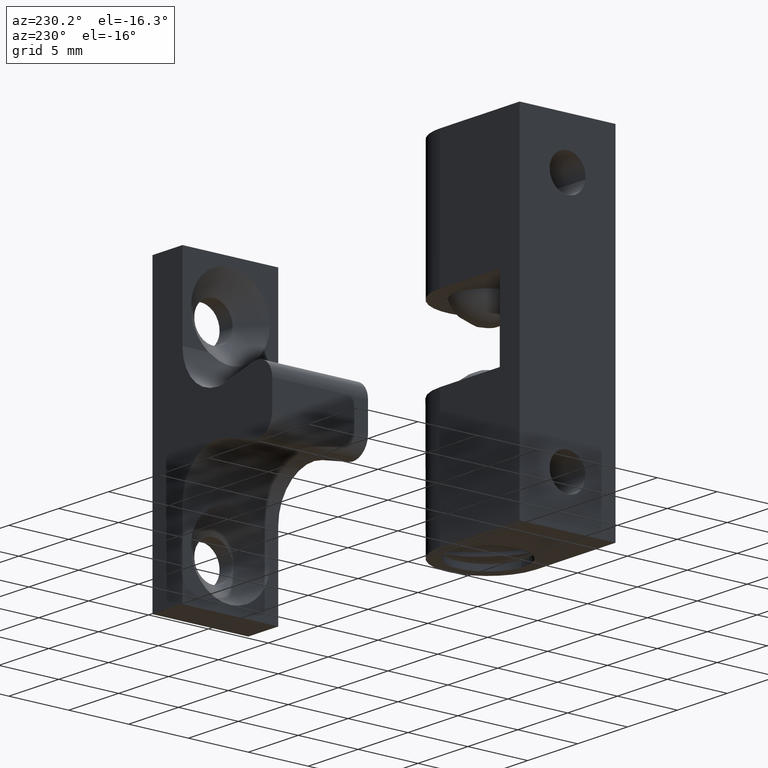
[diagram: clean part render]
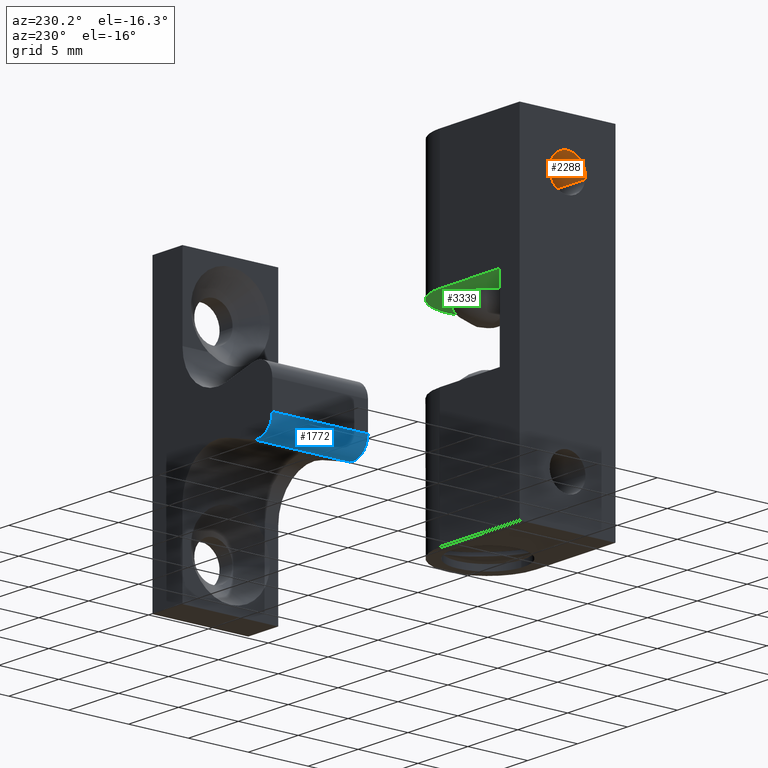
[diagram: same view with three faces highlighted in distinct colors, each labeled with its STEP entity id]
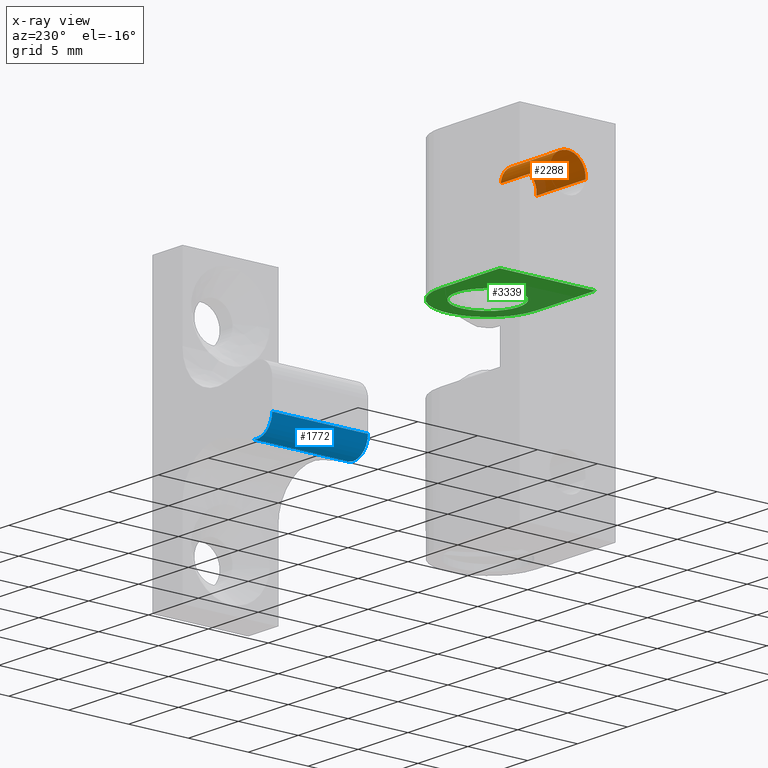
[diagram: x-ray of the same camera — body ghosted, the three highlighted faces saturated]
A machine part, auxiliary view with three faces highlighted in distinct colors.
The next image is the same camera in x-ray (body ghosted, the three faces saturated) — at least one of them is partly hidden behind the body in this view.
Their STEP definitions:

[orange] entity #2288 — the highlighted face is a freeform B-spline surface patch.
#2186=CARTESIAN_POINT('',(5.022500000000003,-1.489514289545500,9.822948648014863));
#2187=CARTESIAN_POINT('',(5.022500000000002,-1.494581423172908,9.865577907043035));
#2188=CARTESIAN_POINT('',(5.022500000000001,-1.497202197632800,9.908427190697715));
#2189=CARTESIAN_POINT('',(5.022500000000002,-1.588775006935085,11.405629388330516));
#2190=CARTESIAN_POINT('',(5.022500000000001,-0.091572809302285,11.497202197632800));
#2191=CARTESIAN_POINT('',(5.022500000000002,1.405629388330515,11.588775006935085));
#2192=CARTESIAN_POINT('',(5.022500000000001,1.497202197632800,10.091572809302290));
#2193=CARTESIAN_POINT('',(-0.125562500000000,-1.489514289545500,9.822948648014863));
#2194=CARTESIAN_POINT('',(-0.125562500000000,-1.494581423172908,9.865577907043035));
#2195=CARTESIAN_POINT('',(-0.125562500000000,-1.497202197632800,9.908427190697715));
#2196=CARTESIAN_POINT('',(-0.125562500000000,-1.588775006935085,11.405629388330516));
#2197=CARTESIAN_POINT('',(-0.125562500000000,-0.091572809302285,11.497202197632800));
#2198=CARTESIAN_POINT('',(-0.125562500000000,1.405629388330515,11.588775006935085));
#2199=CARTESIAN_POINT('',(-0.125562500000000,1.497202197632800,10.091572809302290));
#2207=(BOUNDED_SURFACE()B_SPLINE_SURFACE(2,1,((#2186,#2193),(#2187,#2194),(#2188,#2195),(#2189,#2196),(#2190,#2197),(#2191,#2198),(#2192,#2199)),.UNSPECIFIED.,.F.,.F.,.U.)B_SPLINE_SURFACE_WITH_KNOTS((3,2,2,3),(2,2),(3.078760800517997,3.141592653589793,4.712388980384690,6.283185307179586),(0.0,5.148062500000003),.UNSPECIFIED.)GEOMETRIC_REPRESENTATION_ITEM()RATIONAL_B_SPLINE_SURFACE(((0.977505800795127,0.977505800795127),(0.988284271247462,0.988284271247462),(1.0,1.0),(0.707106781186548,0.707106781186548),(1.0,1.0),(0.707106781186548,0.707106781186548),(1.0,1.0)))REPRESENTATION_ITEM('')SURFACE());
#2208=CARTESIAN_POINT('',(4.900000000000000,-1.489514289535153,9.822948647927817));
#2209=VERTEX_POINT('',#2208);
#2210=CARTESIAN_POINT('',(4.900000000000000,0.0,11.500000000000000));
#2211=VERTEX_POINT('',#2210);
#2212=CARTESIAN_POINT('',(4.900000000000001,-1.489514289535153,9.822948647927817));
#2213=CARTESIAN_POINT('',(4.900000000000000,-1.500000000000001,9.911163820434169));
#2214=CARTESIAN_POINT('',(4.900000000000000,-1.500000000000000,10.0));
#2215=CARTESIAN_POINT('',(4.900000000000000,-1.500000000000000,11.500000000000000));
#2216=CARTESIAN_POINT('',(4.900000000000000,0.0,11.500000000000000));
#2224=(BOUNDED_CURVE()B_SPLINE_CURVE(2,(#2212,#2213,#2214,#2215,#2216),.UNSPECIFIED.,.F.,.U.)B_SPLINE_CURVE_WITH_KNOTS((3,2,3),(0.229562473495891,0.250000000000000,0.500000000000000),.UNSPECIFIED.)CURVE()GEOMETRIC_REPRESENTATION_ITEM()RATIONAL_B_SPLINE_CURVE((0.956026754149169,0.976055948310506,1.0,0.707106781186548,1.0))REPRESENTATION_ITEM(''));
#2225=EDGE_CURVE('',#2209,#2211,#2224,.T.);
#2226=ORIENTED_EDGE('',*,*,#2225,.F.);
#2227=CARTESIAN_POINT('',(5.678856E-017,-1.489514289535153,9.822948647927817));
#2228=VERTEX_POINT('',#2227);
#2229=CARTESIAN_POINT('',(4.900000000000000,-1.489514289535153,9.822948647927817));
#2230=CARTESIAN_POINT('',(5.678856E-017,-1.489514289535153,9.822948647927817));
#2231=QUASI_UNIFORM_CURVE('',1,(#2229,#2230),.UNSPECIFIED.,.F.,.U.);
#2232=EDGE_CURVE('',#2209,#2228,#2231,.T.);
#2233=ORIENTED_EDGE('',*,*,#2232,.T.);
#2234=CARTESIAN_POINT('',(0.0,0.0,11.500000000000000));
#2235=VERTEX_POINT('',#2234);
#2236=CARTESIAN_POINT('',(5.678856E-017,-1.489514289535153,9.822948647927817));
#2237=CARTESIAN_POINT('',(0.0,-1.500000000000001,9.911163820434169));
#2238=CARTESIAN_POINT('',(0.0,-1.500000000000000,10.0));
#2239=CARTESIAN_POINT('',(0.0,-1.500000000000000,11.500000000000000));
#2240=CARTESIAN_POINT('',(0.0,0.0,11.500000000000000));
#2248=(BOUNDED_CURVE()B_SPLINE_CURVE(2,(#2236,#2237,#2238,#2239,#2240),.UNSPECIFIED.,.F.,.U.)B_SPLINE_CURVE_WITH_KNOTS((3,2,3),(0.229562473495891,0.250000000000000,0.500000000000000),.UNSPECIFIED.)CURVE()GEOMETRIC_REPRESENTATION_ITEM()RATIONAL_B_SPLINE_CURVE((0.956026754149169,0.976055948310506,1.0,0.707106781186548,1.0))REPRESENTATION_ITEM(''));
#2249=EDGE_CURVE('',#2228,#2235,#2248,.T.);
#2250=ORIENTED_EDGE('',*,*,#2249,.T.);
#2251=CARTESIAN_POINT('',(5.551115E-017,1.497202197626948,10.091572809397981));
#2252=VERTEX_POINT('',#2251);
#2253=CARTESIAN_POINT('',(0.0,0.0,11.500000000000000));
#2254=CARTESIAN_POINT('',(0.0,1.411059100177828,11.500000000000000));
#2255=CARTESIAN_POINT('',(5.551115E-017,1.497202197626947,10.091572809397976));
#2263=(BOUNDED_CURVE()B_SPLINE_CURVE(2,(#2253,#2254,#2255),.UNSPECIFIED.,.F.,.U.)B_SPLINE_CURVE_WITH_KNOTS((3,3),(0.500000000000000,0.739332962219911),.UNSPECIFIED.)CURVE()GEOMETRIC_REPRESENTATION_ITEM()RATIONAL_B_SPLINE_CURVE((1.0,0.719603993309007,0.976072041625930))REPRESENTATION_ITEM(''));
#2264=EDGE_CURVE('',#2235,#2252,#2263,.T.);
#2265=ORIENTED_EDGE('',*,*,#2264,.T.);
#2266=CARTESIAN_POINT('',(4.899999999999999,1.497202197626947,10.091572809397981));
#2267=VERTEX_POINT('',#2266);
#2268=CARTESIAN_POINT('',(4.899999999999999,1.497202197626947,10.091572809397981));
#2269=CARTESIAN_POINT('',(5.551115E-017,1.497202197626948,10.091572809397981));
#2270=QUASI_UNIFORM_CURVE('',1,(#2268,#2269),.UNSPECIFIED.,.F.,.U.);
#2271=EDGE_CURVE('',#2267,#2252,#2270,.T.);
#2272=ORIENTED_EDGE('',*,*,#2271,.F.);
#2273=CARTESIAN_POINT('',(4.900000000000000,0.0,11.500000000000000));
#2274=CARTESIAN_POINT('',(4.900000000000000,1.411059100177828,11.500000000000000));
#2275=CARTESIAN_POINT('',(4.899999999999999,1.497202197626947,10.091572809397977));
#2283=(BOUNDED_CURVE()B_SPLINE_CURVE(2,(#2273,#2274,#2275),.UNSPECIFIED.,.F.,.U.)B_SPLINE_CURVE_WITH_KNOTS((3,3),(0.500000000000000,0.739332962219911),.UNSPECIFIED.)CURVE()GEOMETRIC_REPRESENTATION_ITEM()RATIONAL_B_SPLINE_CURVE((1.0,0.719603993309007,0.976072041625930))REPRESENTATION_ITEM(''));
#2284=EDGE_CURVE('',#2211,#2267,#2283,.T.);
#2285=ORIENTED_EDGE('',*,*,#2284,.F.);
#2286=EDGE_LOOP('',(#2226,#2233,#2250,#2265,#2272,#2285));
#2287=FACE_OUTER_BOUND('',#2286,.T.);
#2288=ADVANCED_FACE('',(#2287),#2207,.F.);

[blue] entity #1772 — the highlighted face is a freeform B-spline surface patch.
#1522=CARTESIAN_POINT('',(26.692787892644400,4.0,-2.598299992240095));
#1523=VERTEX_POINT('',#1522);
#1529=CARTESIAN_POINT('',(24.801787863870100,4.0,-1.149999999999976));
#1530=VERTEX_POINT('',#1529);
#1531=CARTESIAN_POINT('',(24.801787863870100,4.0,-1.149999999999976));
#1532=CARTESIAN_POINT('',(24.801931158240908,4.0,-1.890550102231618));
#1533=CARTESIAN_POINT('',(25.389856556091740,4.0,-2.340836900850575));
#1534=CARTESIAN_POINT('',(25.977781953942582,4.0,-2.791123699469534));
#1535=CARTESIAN_POINT('',(26.692787892644400,4.0,-2.598299992240091));
#1543=(BOUNDED_CURVE()B_SPLINE_CURVE(2,(#1531,#1532,#1533,#1534,#1535),.UNSPECIFIED.,.F.,.U.)B_SPLINE_CURVE_WITH_KNOTS((3,2,3),(0.0,0.500000000000000,1.0),.UNSPECIFIED.)CURVE()GEOMETRIC_REPRESENTATION_ITEM()RATIONAL_B_SPLINE_CURVE((1.0,0.896715467920223,1.0,0.896715467920223,1.0))REPRESENTATION_ITEM(''));
#1544=EDGE_CURVE('',#1530,#1523,#1543,.T.);
#1602=CARTESIAN_POINT('',(24.801787863870100,-4.0,-1.149999999999976));
#1603=VERTEX_POINT('',#1602);
#1609=CARTESIAN_POINT('',(26.692787892644400,-4.0,-2.598299992240095));
#1610=VERTEX_POINT('',#1609);
#1611=CARTESIAN_POINT('',(24.801787863870100,-4.0,-1.149999999999976));
#1612=CARTESIAN_POINT('',(24.801931158240908,-4.0,-1.890550102231618));
#1613=CARTESIAN_POINT('',(25.389856556091740,-4.0,-2.340836900850575));
#1614=CARTESIAN_POINT('',(25.977781953942582,-4.0,-2.791123699469534));
#1615=CARTESIAN_POINT('',(26.692787892644400,-4.0,-2.598299992240091));
#1623=(BOUNDED_CURVE()B_SPLINE_CURVE(2,(#1611,#1612,#1613,#1614,#1615),.UNSPECIFIED.,.F.,.U.)B_SPLINE_CURVE_WITH_KNOTS((3,2,3),(0.0,0.500000000000000,1.0),.UNSPECIFIED.)CURVE()GEOMETRIC_REPRESENTATION_ITEM()RATIONAL_B_SPLINE_CURVE((1.0,0.896715467920223,1.0,0.896715467920223,1.0))REPRESENTATION_ITEM(''));
#1624=EDGE_CURVE('',#1603,#1610,#1623,.T.);
#1738=CARTESIAN_POINT('',(24.801787863870100,-4.0,-1.149999999999976));
#1739=CARTESIAN_POINT('',(24.801787863870100,4.0,-1.149999999999976));
#1740=QUASI_UNIFORM_CURVE('',1,(#1738,#1739),.UNSPECIFIED.,.F.,.U.);
#1741=EDGE_CURVE('',#1603,#1530,#1740,.T.);
#1748=CARTESIAN_POINT('',(24.803112070170670,-4.200000000000000,-1.086687022408250));
#1749=CARTESIAN_POINT('',(24.803112070170670,4.205000000000000,-1.086687022408250));
#1750=CARTESIAN_POINT('',(24.709685384162242,-4.200000000000001,-3.308876407918497));
#1751=CARTESIAN_POINT('',(24.709685384162242,4.205000000000000,-3.308876407918497));
#1752=CARTESIAN_POINT('',(26.805122871650308,-4.200000000000000,-2.563225050538494));
#1753=CARTESIAN_POINT('',(26.805122871650308,4.205000000000000,-2.563225050538494));
#1761=(BOUNDED_SURFACE()B_SPLINE_SURFACE(1,2,((#1748,#1750,#1752),(#1749,#1751,#1753)),.UNSPECIFIED.,.F.,.F.,.U.)B_SPLINE_SURFACE_WITH_KNOTS((2,2),(3,3),(0.0,8.405000000000001),(0.0,3.190827078292001),.UNSPECIFIED.)GEOMETRIC_REPRESENTATION_ITEM()RATIONAL_B_SPLINE_SURFACE(((1.0,0.559214690399076,0.999956428296982),(1.0,0.559214690399076,0.999956428296982)))REPRESENTATION_ITEM('')SURFACE());
#1762=ORIENTED_EDGE('',*,*,#1544,.T.);
#1763=CARTESIAN_POINT('',(26.692787892644400,-4.0,-2.598299992240095));
#1764=CARTESIAN_POINT('',(26.692787892644400,4.0,-2.598299992240095));
#1765=QUASI_UNIFORM_CURVE('',1,(#1763,#1764),.UNSPECIFIED.,.F.,.U.);
#1766=EDGE_CURVE('',#1610,#1523,#1765,.T.);
#1767=ORIENTED_EDGE('',*,*,#1766,.F.);
#1768=ORIENTED_EDGE('',*,*,#1624,.F.);
#1769=ORIENTED_EDGE('',*,*,#1741,.T.);
#1770=EDGE_LOOP('',(#1762,#1767,#1768,#1769));
#1771=FACE_OUTER_BOUND('',#1770,.T.);
#1772=ADVANCED_FACE('',(#1771),#1761,.T.);

[green] entity #3339 — the highlighted face is a freeform B-spline surface patch.
#2949=CARTESIAN_POINT('',(5.399746158397545,0.0,3.300000000000000));
#2950=VERTEX_POINT('',#2949);
#2951=CARTESIAN_POINT('',(10.600053841602460,0.0,3.300000000000000));
#2952=VERTEX_POINT('',#2951);
#2953=CARTESIAN_POINT('',(5.399746158397545,0.0,3.300000000000000));
#2954=CARTESIAN_POINT('',(5.399746158397545,2.600153841602455,3.300000000000001));
#2955=CARTESIAN_POINT('',(7.999900000000001,2.600153841602455,3.300000000000000));
#2956=CARTESIAN_POINT('',(10.600053841602456,2.600153841602455,3.300000000000001));
#2957=CARTESIAN_POINT('',(10.600053841602460,0.0,3.300000000000000));
#2965=(BOUNDED_CURVE()B_SPLINE_CURVE(2,(#2953,#2954,#2955,#2956,#2957),.UNSPECIFIED.,.F.,.U.)B_SPLINE_CURVE_WITH_KNOTS((3,2,3),(0.0,0.250000000000000,0.500000000000000),.UNSPECIFIED.)CURVE()GEOMETRIC_REPRESENTATION_ITEM()RATIONAL_B_SPLINE_CURVE((1.0,0.707106781186547,1.0,0.707106781186547,1.0))REPRESENTATION_ITEM(''));
#2966=EDGE_CURVE('',#2950,#2952,#2965,.T.);
#2968=CARTESIAN_POINT('',(10.600053841602460,0.0,3.300000000000000));
#2969=CARTESIAN_POINT('',(10.600053841602456,-2.600153841602455,3.300000000000001));
#2970=CARTESIAN_POINT('',(7.999900000000001,-2.600153841602455,3.300000000000000));
#2971=CARTESIAN_POINT('',(5.399746158397545,-2.600153841602455,3.300000000000001));
#2972=CARTESIAN_POINT('',(5.399746158397545,0.0,3.300000000000000));
#2980=(BOUNDED_CURVE()B_SPLINE_CURVE(2,(#2968,#2969,#2970,#2971,#2972),.UNSPECIFIED.,.F.,.U.)B_SPLINE_CURVE_WITH_KNOTS((3,2,3),(0.500000000000000,0.750000000000000,1.0),.UNSPECIFIED.)CURVE()GEOMETRIC_REPRESENTATION_ITEM()RATIONAL_B_SPLINE_CURVE((1.0,0.707106781186547,1.0,0.707106781186547,1.0))REPRESENTATION_ITEM(''));
#2981=EDGE_CURVE('',#2952,#2950,#2980,.T.);
#3043=CARTESIAN_POINT('',(1.999900000000000,4.0,3.300000000000000));
#3044=VERTEX_POINT('',#3043);
#3052=CARTESIAN_POINT('',(1.999900000000000,-4.0,3.300000000000000));
#3053=VERTEX_POINT('',#3052);
#3054=CARTESIAN_POINT('',(1.999900000000000,-4.0,3.300000000000000));
#3055=CARTESIAN_POINT('',(1.999900000000000,4.0,3.300000000000000));
#3056=QUASI_UNIFORM_CURVE('',1,(#3054,#3055),.UNSPECIFIED.,.F.,.U.);
#3057=EDGE_CURVE('',#3053,#3044,#3056,.T.);
#3128=CARTESIAN_POINT('',(7.999900000000001,-4.0,3.300000000000000));
#3129=VERTEX_POINT('',#3128);
#3130=CARTESIAN_POINT('',(7.999900000000001,-4.0,3.300000000000000));
#3131=CARTESIAN_POINT('',(1.999900000000000,-4.0,3.300000000000000));
#3132=QUASI_UNIFORM_CURVE('',1,(#3130,#3131),.UNSPECIFIED.,.F.,.U.);
#3133=EDGE_CURVE('',#3129,#3053,#3132,.T.);
#3175=CARTESIAN_POINT('',(7.999900000000001,4.0,3.300000000000000));
#3176=VERTEX_POINT('',#3175);
#3184=CARTESIAN_POINT('',(7.999900000000001,4.0,3.300000000000000));
#3185=CARTESIAN_POINT('',(1.999900000000000,4.0,3.300000000000000));
#3186=QUASI_UNIFORM_CURVE('',1,(#3184,#3185),.UNSPECIFIED.,.F.,.U.);
#3187=EDGE_CURVE('',#3176,#3044,#3186,.T.);
#3290=CARTESIAN_POINT('',(7.999900000000001,-4.0,3.300000000000000));
#3291=CARTESIAN_POINT('',(11.999900000000002,-4.000000000000000,3.300000000000000));
#3292=CARTESIAN_POINT('',(11.999900000000000,0.0,3.300000000000000));
#3293=CARTESIAN_POINT('',(11.999900000000002,4.000000000000000,3.300000000000000));
#3294=CARTESIAN_POINT('',(7.999900000000001,4.0,3.300000000000000));
#3302=(BOUNDED_CURVE()B_SPLINE_CURVE(2,(#3290,#3291,#3292,#3293,#3294),.UNSPECIFIED.,.F.,.U.)B_SPLINE_CURVE_WITH_KNOTS((3,2,3),(0.0,0.500000000000000,1.0),.UNSPECIFIED.)CURVE()GEOMETRIC_REPRESENTATION_ITEM()RATIONAL_B_SPLINE_CURVE((1.0,0.707106781186548,1.0,0.707106781186548,1.0))REPRESENTATION_ITEM(''));
#3303=EDGE_CURVE('',#3129,#3176,#3302,.T.);
#3324=CARTESIAN_POINT('',(12.499399886745200,-4.399599984494448,3.300000000000000));
#3325=CARTESIAN_POINT('',(1.500399755626918,-4.399599984494448,3.300000000000000));
#3326=CARTESIAN_POINT('',(12.499399886745200,4.399600199071169,3.300000000000000));
#3327=CARTESIAN_POINT('',(1.500399755626918,4.399600199071169,3.300000000000000));
#3328=B_SPLINE_SURFACE_WITH_KNOTS('',1,1,((#3324,#3326),(#3325,#3327)),.UNSPECIFIED.,.F.,.F.,.U.,(2,2),(2,2),(0.0,10.999000131118279),(0.0,8.799200183565617),.UNSPECIFIED.);
#3329=ORIENTED_EDGE('',*,*,#3133,.T.);
#3330=ORIENTED_EDGE('',*,*,#3057,.T.);
#3331=ORIENTED_EDGE('',*,*,#3187,.F.);
#3332=ORIENTED_EDGE('',*,*,#3303,.F.);
#3333=EDGE_LOOP('',(#3329,#3330,#3331,#3332));
#3334=FACE_OUTER_BOUND('',#3333,.T.);
#3335=ORIENTED_EDGE('',*,*,#2966,.F.);
#3336=ORIENTED_EDGE('',*,*,#2981,.F.);
#3337=EDGE_LOOP('',(#3335,#3336));
#3338=FACE_BOUND('',#3337,.T.);
#3339=ADVANCED_FACE('',(#3334,#3338),#3328,.T.);